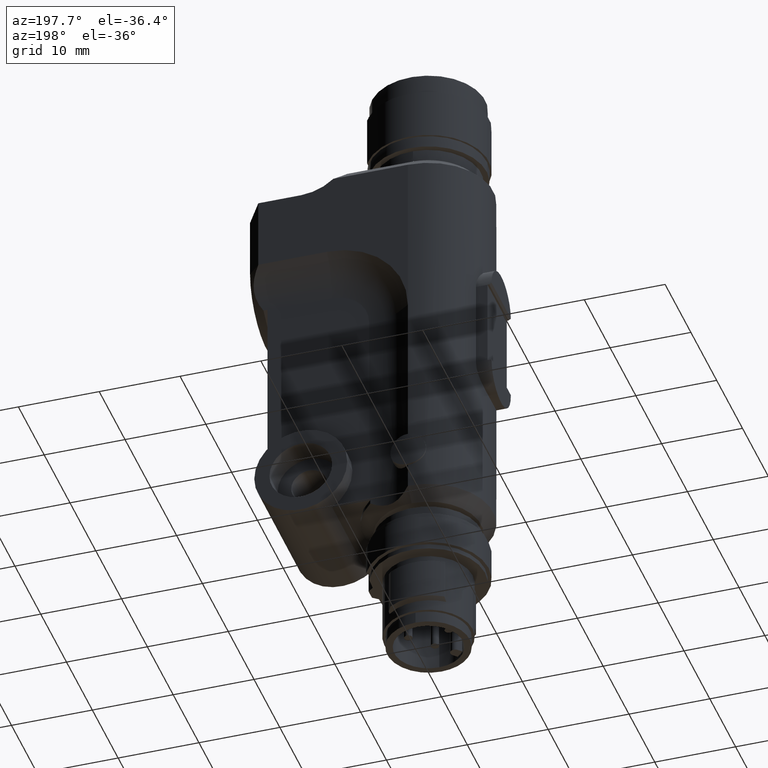
[diagram: clean part render]
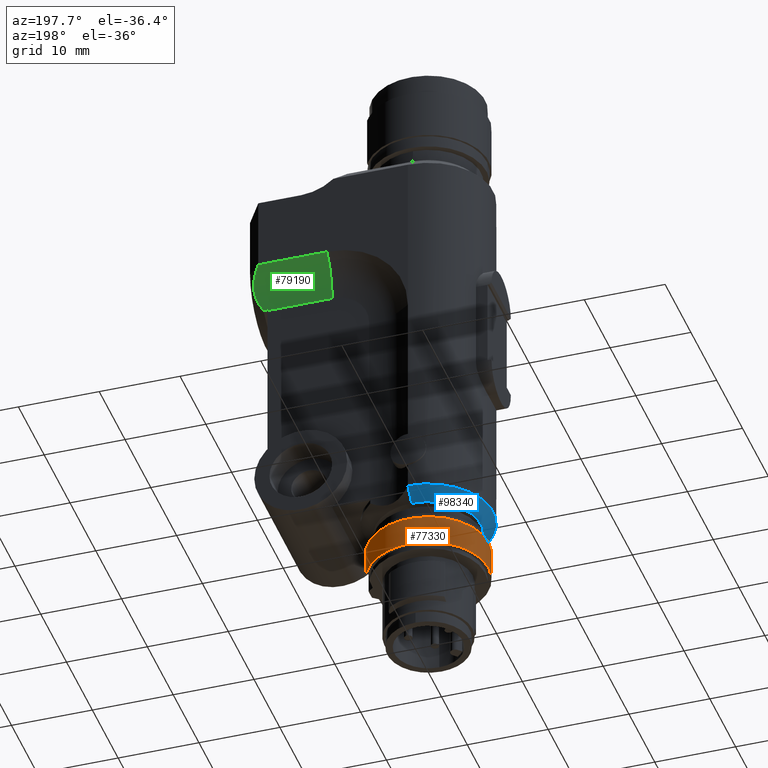
[diagram: same view with three faces highlighted in distinct colors, each labeled with its STEP entity id]
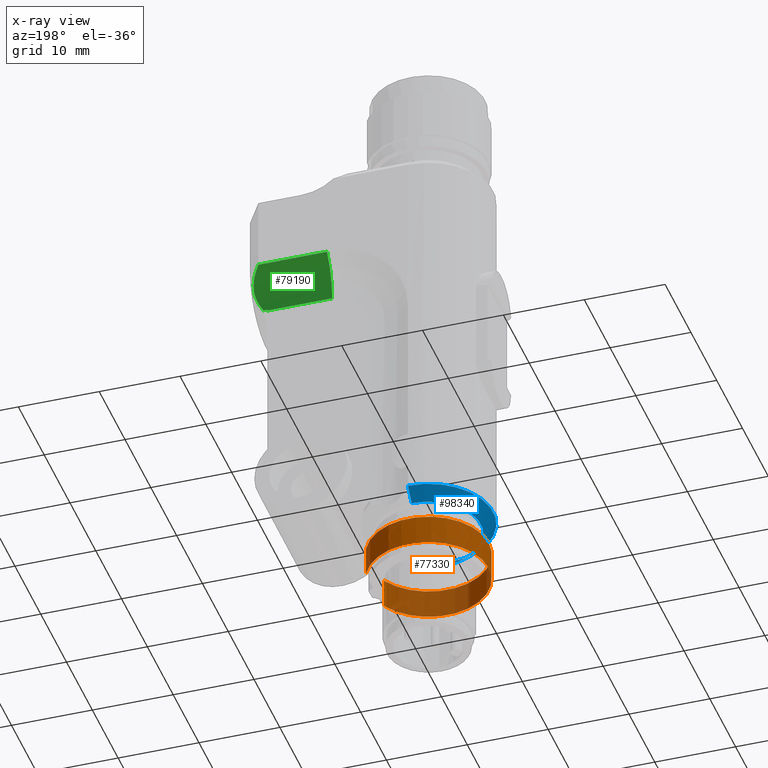
[diagram: x-ray of the same camera — body ghosted, the three highlighted faces saturated]
A machine part, auxiliary view with three faces highlighted in distinct colors.
The next image is the same camera in x-ray (body ghosted, the three faces saturated) — at least one of them is partly hidden behind the body in this view.
Their STEP definitions:

[orange] entity #77330 — the highlighted cylindrical surface (partial cylindrical patch) has radius 7.45 mm, axis along (0, -0, 1).
#76400=CARTESIAN_POINT('',(3.41126744068708,6.62312271123875,
-6.6000000000002));
#76410=VERTEX_POINT('',#76400);
#76440=CARTESIAN_POINT('',(3.41126744068708,6.62312271123875,
-6.6000000000002));
#76450=DIRECTION('',(1.22124532708767E-15,4.30211422042248E-16,1.));
#76460=VECTOR('',#76450,1.);
#76470=LINE('',#76440,#76460);
#76480=CARTESIAN_POINT('',(3.41126744068708,6.62312271123875,
-2.90000000000016));
#76490=VERTEX_POINT('',#76480);
#76500=EDGE_CURVE('',#76410,#76490,#76470,.T.);
#76880=CARTESIAN_POINT('',(-3.3433758552121,6.65765258111505,
-6.60000000000019));
#76890=VERTEX_POINT('',#76880);
#76920=CARTESIAN_POINT('',(-1.84030568561866E-12,2.32214247830598E-12,
-6.60000000000019));
#76930=DIRECTION('',(1.22124532708767E-15,4.30211422042248E-16,1.));
#76940=DIRECTION('',(-0.707106781186547,0.707106781186548,
5.55111512312578E-16));
#76950=AXIS2_PLACEMENT_3D('',#76920,#76930,#76940);
#76960=CIRCLE('',#76950,7.45);
#76970=EDGE_CURVE('',#76890,#76410,#76960,.T.);
#77090=CARTESIAN_POINT('',(-1.84030568561866E-12,2.32214247830598E-12,
-6.60000000000019));
#77100=DIRECTION('',(1.22124532708767E-15,3.95516952522712E-16,1.));
#77110=DIRECTION('',(-0.707106781186547,0.707106781186548,
5.55111512312578E-16));
#77120=AXIS2_PLACEMENT_3D('',#77090,#77100,#77110);
#77130=CYLINDRICAL_SURFACE('',#77120,7.45);
#77140=ORIENTED_EDGE('',*,*,#76500,.T.);
#77150=ORIENTED_EDGE('',*,*,#76970,.T.);
#77160=CARTESIAN_POINT('',(-3.34337585521209,6.65765258111506,
-6.60000000000019));
#77170=DIRECTION('',(1.22124532708767E-15,4.30211422042248E-16,1.));
#77180=VECTOR('',#77170,1.);
#77190=LINE('',#77160,#77180);
#77200=CARTESIAN_POINT('',(-3.3433758552121,6.65765258111505,
-2.90000000000015));
#77210=VERTEX_POINT('',#77200);
#77220=EDGE_CURVE('',#76890,#77210,#77190,.T.);
#77230=ORIENTED_EDGE('',*,*,#77220,.F.);
#77240=CARTESIAN_POINT('',(-1.83320025826106E-12,2.32303065672568E-12,
-2.90000000000015));
#77250=DIRECTION('',(1.22124532708767E-15,4.30211422042248E-16,1.));
#77260=DIRECTION('',(-0.707106781186547,0.707106781186548,
5.55111512312578E-16));
#77270=AXIS2_PLACEMENT_3D('',#77240,#77250,#77260);
#77280=CIRCLE('',#77270,7.45);
#77290=EDGE_CURVE('',#77210,#76490,#77280,.T.);
#77300=ORIENTED_EDGE('',*,*,#77290,.F.);
#77310=EDGE_LOOP('',(#77300,#77230,#77150,#77140));
#77320=FACE_OUTER_BOUND('',#77310,.T.);
#77330=ADVANCED_FACE('',(#77320),#77130,.T.);

[blue] entity #98340 — the highlighted conical surface has half-angle 45 deg.
#7100=CARTESIAN_POINT('',(8.,7.105427357601E-15,1.5));
#7110=VERTEX_POINT('',#7100);
#7140=CARTESIAN_POINT('',(7.61693287089118E-16,7.105427357601E-15,1.5));
#7150=DIRECTION('',(2.52970265222012E-16,6.19598451167187E-32,1.));
#7160=DIRECTION('',(1.,0.,-2.52970265222012E-16));
#7170=AXIS2_PLACEMENT_3D('',#7140,#7150,#7160);
#7180=CIRCLE('',#7170,8.);
#7190=CARTESIAN_POINT('',(-8.,8.08514479691888E-15,1.5));
#7200=VERTEX_POINT('',#7190);
#7210=EDGE_CURVE('',#7200,#7110,#7180,.T.);
#33750=CARTESIAN_POINT('',(3.822378892561E-16,7.105427357601E-15,
-5.0068352689673E-32));
#33760=DIRECTION('',(2.52970265222012E-16,6.19598451167187E-32,1.));
#33770=DIRECTION('',(1.,0.,-2.52970265222012E-16));
#33780=AXIS2_PLACEMENT_3D('',#33750,#33760,#33770);
#33790=CIRCLE('',#33780,6.5);
#33800=CARTESIAN_POINT('',(6.50000000000001,7.105427357601E-15,0.));
#33810=VERTEX_POINT('',#33800);
#33820=CARTESIAN_POINT('',(-6.50000000000001,7.90144777704678E-15,
1.55431223447522E-15));
#33830=VERTEX_POINT('',#33820);
#33860=EDGE_CURVE('',#33830,#33810,#33790,.T.);
#34130=CARTESIAN_POINT('',(-8.,8.08514479691888E-15,1.5));
#34140=DIRECTION('',(-0.707106781186547,8.65956056235493E-17,
0.707106781186548));
#34150=VECTOR('',#34140,11.3137084989848);
#34160=LINE('',#34130,#34150);
#34170=EDGE_CURVE('',#33830,#7200,#34160,.T.);
#34200=CARTESIAN_POINT('',(8.,7.105427357601E-15,1.5));
#34210=DIRECTION('',(0.707106781186547,0.,0.707106781186548));
#34220=VECTOR('',#34210,11.3137084989848);
#34230=LINE('',#34200,#34220);
#34240=EDGE_CURVE('',#33810,#7110,#34230,.T.);
#98230=CARTESIAN_POINT('',(7.61693287089118E-16,7.105427357601E-15,1.5))
;
#98240=DIRECTION('',(2.52970265222012E-16,0.,1.));
#98250=DIRECTION('',(1.,0.,-2.52970265222012E-16));
#98260=AXIS2_PLACEMENT_3D('',#98230,#98240,#98250);
#98270=CONICAL_SURFACE('',#98260,8.,0.785398163397448);
#98280=ORIENTED_EDGE('',*,*,#34170,.F.);
#98290=ORIENTED_EDGE('',*,*,#7210,.F.);
#98300=ORIENTED_EDGE('',*,*,#34240,.T.);
#98310=ORIENTED_EDGE('',*,*,#33860,.T.);
#98320=EDGE_LOOP('',(#98310,#98300,#98290,#98280));
#98330=FACE_OUTER_BOUND('',#98320,.T.);
#98340=ADVANCED_FACE('',(#98330),#98270,.T.);

[green] entity #79190 — the highlighted cylindrical surface (partial cylindrical patch) has radius 8 mm, axis along (1, 0, 0).
#11360=CARTESIAN_POINT('',(-6.,18.,32.7084973778706));
#11370=VERTEX_POINT('',#11360);
#11400=CARTESIAN_POINT('',(-14.0000000000001,18.,32.7084973778708));
#11410=DIRECTION('',(0.,-1.,0.));
#11420=DIRECTION('',(0.,0.,1.));
#11430=AXIS2_PLACEMENT_3D('',#11400,#11410,#11420);
#11440=CIRCLE('',#11430,8.00000000000009);
#11450=CARTESIAN_POINT('',(-6.001,18.,32.582010224373));
#11460=VERTEX_POINT('',#11450);
#11470=EDGE_CURVE('',#11460,#11370,#11440,.T.);
#16040=CARTESIAN_POINT('',(-7.99999859336713,18.5000014066328,
37.9999984050278));
#16050=VERTEX_POINT('',#16040);
#16080=CARTESIAN_POINT('',(2.79776202205539E-14,18.5,38.0000000000001));
#16090=DIRECTION('',(0.,-1.,0.));
#16100=DIRECTION('',(1.,0.,0.));
#16110=AXIS2_PLACEMENT_3D('',#16080,#16090,#16100);
#16120=CONICAL_SURFACE('',#16110,8.00000000000019,0.785398163397446);
#16130=CARTESIAN_POINT('',(-14.0000000000001,20.,32.7084973778708));
#16140=DIRECTION('',(0.,1.,0.));
#16150=DIRECTION('',(0.,0.,1.));
#16160=AXIS2_PLACEMENT_3D('',#16130,#16140,#16150);
#16170=CYLINDRICAL_SURFACE('',#16160,8.00000000000009);
#16180=CARTESIAN_POINT('',(-5.99999999999996,18.5,32.7084973778706));
#16190=CARTESIAN_POINT('',(-5.99999999999996,18.5714493408275,
32.8165186276814));
#16200=CARTESIAN_POINT('',(-6.0021889720516,18.6411769465298,
32.9262736845923));
#16210=CARTESIAN_POINT('',(-6.00677089526938,18.7085294848601,
33.0375695269314));
#16220=CARTESIAN_POINT('',(-6.01135282209607,18.7758820762399,
33.1488654569313));
#16230=CARTESIAN_POINT('',(-6.01832737454154,18.8408603146523,
33.2617032516133));
#16240=CARTESIAN_POINT('',(-6.02788860111193,18.902786847561,
33.3759101764586));
#16250=CARTESIAN_POINT('',(-6.03744982874106,18.964713387327,
33.4901171139504));
#16260=CARTESIAN_POINT('',(-6.04959752579692,19.0235889693471,
33.6056950091979));
#16270=CARTESIAN_POINT('',(-6.06452112521964,19.0787107837863,
33.7224870365531));
#16280=CARTESIAN_POINT('',(-6.07944471184251,19.1338325509479,
33.8392789637366));
#16290=CARTESIAN_POINT('',(-6.09714421990201,19.1852008294304,
33.9572872568992));
#16300=CARTESIAN_POINT('',(-6.11780816648881,19.2320899245847,
34.0763613695489));
#16310=CARTESIAN_POINT('',(-6.1281409748359,19.2555363670037,
34.1359032377947));
#16320=CARTESIAN_POINT('',(-6.13921093131087,19.2778551462465,
34.1956908060053));
#16330=CARTESIAN_POINT('',(-6.15105326643681,19.2989753041726,
34.2557643792923));
#16340=CARTESIAN_POINT('',(-6.16289862063636,19.3201008464517,
34.3158532676788));
#16350=CARTESIAN_POINT('',(-6.17552804090742,19.3400435548115,
34.3762803716618));
#16360=CARTESIAN_POINT('',(-6.18895412942939,19.358680109334,
34.4369540327632));
#16370=CARTESIAN_POINT('',(-6.20238021018781,19.37731665308,
34.4976276587805));
#16380=CARTESIAN_POINT('',(-6.21660279624114,19.3946465154964,
34.5585468605852));
#16390=CARTESIAN_POINT('',(-6.23162651443677,19.4105594882244,
34.6196157386214));
#16400=CARTESIAN_POINT('',(-6.24665025098471,19.4264724803909,
34.6806846912567));
#16410=CARTESIAN_POINT('',(-6.26247483240855,19.4409680610936,
34.7419020213869));
#16420=CARTESIAN_POINT('',(-6.27909700041064,19.4539531733856,
34.8031708299733));
#16430=CARTESIAN_POINT('',(-6.2957187606876,19.4669379671659,
34.8644381356973));
#16440=CARTESIAN_POINT('',(-6.31313328415602,19.4784117321749,
34.9257435902121));
#16450=CARTESIAN_POINT('',(-6.33137272206272,19.4883182711279,
34.9871275962425));
#16460=CARTESIAN_POINT('',(-6.34960871853724,19.4982229409069,
35.0485000202881));
#16470=CARTESIAN_POINT('',(-6.3686536812867,19.5065485453529,
35.1098931906529));
#16480=CARTESIAN_POINT('',(-6.38848092045468,19.5132308123999,
35.1711742348128));
#16490=CARTESIAN_POINT('',(-6.40830965437956,19.5199135832167,
35.2324598988929));
#16500=CARTESIAN_POINT('',(-6.42894084247873,19.5249591129044,
35.2936949569237));
#16510=CARTESIAN_POINT('',(-6.45033510840105,19.5283242004416,
35.3547324438765));
#16520=CARTESIAN_POINT('',(-6.47172618693533,19.5316887866369,
35.4157608372639));
#16530=CARTESIAN_POINT('',(-6.49389289285028,19.5333757540502,
35.4766286354332));
#16540=CARTESIAN_POINT('',(-6.5167932497905,19.5333704403711,
35.5372102890053));
#16550=CARTESIAN_POINT('',(-6.53968990516133,19.533365127551,
35.5977821502761));
#16560=CARTESIAN_POINT('',(-6.56333005615067,19.5316679450744,
35.6580944552051));
#16570=CARTESIAN_POINT('',(-6.5876599072674,19.5282925390286,
35.718017995788));
#16580=CARTESIAN_POINT('',(-6.61198656408435,19.5249175761447,
35.7779336689264));
#16590=CARTESIAN_POINT('',(-6.63701810516557,19.519862685734,
35.8374984566278));
#16600=CARTESIAN_POINT('',(-6.66269078185908,19.5131688714316,
35.8965835494453));
#16610=CARTESIAN_POINT('',(-6.68835935929203,19.5064761259578,
35.955659207906));
#16620=CARTESIAN_POINT('',(-6.71467834178696,19.4981436089631,
36.0142785027242));
#16630=CARTESIAN_POINT('',(-6.74160419211325,19.4882273913278,
36.0723776218828));
#16640=CARTESIAN_POINT('',(-6.76852811078675,19.4783118850791,
36.1304725730271));
#16650=CARTESIAN_POINT('',(-6.79604985881537,19.4668155726103,
36.1880271198175));
#16660=CARTESIAN_POINT('',(-6.82409459348144,19.4538290633079,
36.2449336627058));
#16670=CARTESIAN_POINT('',(-6.85213869061053,19.4408428492261,
36.3018389119457));
#16680=CARTESIAN_POINT('',(-6.88074807107649,19.4263475540022,
36.3581828354169));
#16690=CARTESIAN_POINT('',(-6.90986541632887,19.4104329778546,
36.413897705154));
#16700=CARTESIAN_POINT('',(-6.9389827030333,19.3945184337074,
36.469612462862));
#16710=CARTESIAN_POINT('',(-6.96860734920602,19.3771850825536,
36.5246970465447));
#16720=CARTESIAN_POINT('',(-6.99867660327346,19.3585389798986,
36.5790878618215));
#16730=CARTESIAN_POINT('',(-7.02874585276423,19.3398928800816,
36.6334786688197));
#16740=CARTESIAN_POINT('',(-7.05925921748089,19.3199345115386,
36.6871748991247));
#16750=CARTESIAN_POINT('',(-7.09015044800666,19.2987826340558,
36.7401197769622));
#16760=CARTESIAN_POINT('',(-7.121047716537,19.2776266222239,
36.7930750034136));
#16770=CARTESIAN_POINT('',(-7.15229576829609,19.2552969333562,
36.8452342574757));
#16780=CARTESIAN_POINT('',(-7.18390392356054,19.23186399518,
36.8966752963415));
#16790=CARTESIAN_POINT('',(-7.24713125116519,19.1849899512374,
36.9995753039337));
#16800=CARTESIAN_POINT('',(-7.3118576134856,19.1336567069888,
37.0996917480109));
#16810=CARTESIAN_POINT('',(-7.37785576648486,19.0785805719868,
37.1970612629595));
#16820=CARTESIAN_POINT('',(-7.44385406833094,19.0235043127706,
37.2944309975072));
#16830=CARTESIAN_POINT('',(-7.51112619224866,18.9646842797685,
37.3890562824095));
#16840=CARTESIAN_POINT('',(-7.57944441047193,18.9028049342525,
37.4809669609881));
#16850=CARTESIAN_POINT('',(-7.64776265388963,18.8409255659167,
37.5728776734616));
#16860=CARTESIAN_POINT('',(-7.71712873863645,18.7759856575714,
37.6620754502897));
#16870=CARTESIAN_POINT('',(-7.78730349440589,18.7086388055578,
37.7485769535699));
#16880=CARTESIAN_POINT('',(-7.85747819030448,18.6412920110023,
37.8350783830497));
#16890=CARTESIAN_POINT('',(-7.92846275542024,18.5715372284055,
37.9188843456791));
#16900=CARTESIAN_POINT('',(-7.99999859301403,18.5000014069876,
37.9999984046279));
#16910=B_SPLINE_CURVE_WITH_KNOTS('',3,(#16180,#16190,#16200,#16210,
#16220,#16230,#16240,#16250,#16260,#16270,#16280,#16290,#16300,#16310,
#16320,#16330,#16340,#16350,#16360,#16370,#16380,#16390,#16400,#16410,
#16420,#16430,#16440,#16450,#16460,#16470,#16480,#16490,#16500,#16510,
#16520,#16530,#16540,#16550,#16560,#16570,#16580,#16590,#16600,#16610,
#16620,#16630,#16640,#16650,#16660,#16670,#16680,#16690,#16700,#16710,
#16720,#16730,#16740,#16750,#16760,#16770,#16780,#16790,#16800,#16810,
#16820,#16830,#16840,#16850,#16860,#16870,#16880,#16890,#16900),
.UNSPECIFIED.,.F.,.F.,(4,3,3,3,3,3,3,3,3,3,3,3,3,3,3,3,3,3,3,3,3,3,3,3,4
),(0.,0.389685716820624,0.780458460909038,1.17092994858571,
1.56037966745842,1.7547255098787,1.94924441131206,2.14388587282413,
2.33840400629358,2.53273073554968,2.7270625195362,2.92137543959998,
3.11567081107734,3.30996356038954,3.50426784593773,3.6985939968194,
3.8929456776934,4.08736032633098,4.281977368909,4.47659583619128,
4.67097543067238,5.06010772295076,5.45023407287883,5.84083357983416,
6.23072803032288),.UNSPECIFIED.);
#16920=SURFACE_CURVE('',#16910,(#16120,#16170),.CURVE_3D.);
#16930=CARTESIAN_POINT('',(-6.,18.5000000000108,32.7084973778706));
#16940=VERTEX_POINT('',#16930);
#16950=EDGE_CURVE('',#16940,#16050,#16920,.T.);
#18380=CARTESIAN_POINT('',(-6.,18.,32.7084973778707));
#18390=DIRECTION('',(0.,1.,0.));
#18400=VECTOR('',#18390,1.);
#18410=LINE('',#18380,#18400);
#18420=EDGE_CURVE('',#11370,#16940,#18410,.T.);
#19690=CARTESIAN_POINT('',(-7.99999999999999,20.,38.));
#19700=DIRECTION('',(0.,1.,0.));
#19710=VECTOR('',#19700,1.);
#19720=LINE('',#19690,#19710);
#19730=CARTESIAN_POINT('',(-7.99999999999999,10.,38.));
#19740=VERTEX_POINT('',#19730);
#19750=CARTESIAN_POINT('',(-7.99999999999999,18.5,38.));
#19760=VERTEX_POINT('',#19750);
#19770=EDGE_CURVE('',#19740,#19760,#19720,.T.);
#24430=CARTESIAN_POINT('',(-14.0000000000001,12.4999999999996,
32.7084973778708));
#24440=DIRECTION('',(0.707106781186564,-0.707106781186531,0.));
#24450=DIRECTION('',(-0.707106781186531,-0.707106781186564,0.));
#24460=AXIS2_PLACEMENT_3D('',#24430,#24440,#24450);
#24470=ELLIPSE('',#24460,11.3137084989852,8.00000000000009);
#24480=EDGE_CURVE('',#16050,#19760,#24470,.T.);
#24640=CARTESIAN_POINT('',(-6.001,9.99979126227064,32.5820102196179));
#24650=VERTEX_POINT('',#24640);
#24740=CARTESIAN_POINT('',(-6.001,20.,32.582010224373));
#24750=DIRECTION('',(0.,1.,0.));
#24760=VECTOR('',#24750,1.);
#24770=LINE('',#24740,#24760);
#24780=EDGE_CURVE('',#24650,#11460,#24770,.T.);
#28610=CARTESIAN_POINT('',(-6.00099999996241,9.9997912622702,
32.5820102243724));
#28620=CARTESIAN_POINT('',(-5.99905382179248,9.99982992538619,
32.7050857996448));
#28630=CARTESIAN_POINT('',(-5.99994867757186,9.99987284943423,
32.8282062892243));
#28640=CARTESIAN_POINT('',(-6.00741855101626,9.99994155915745,
33.0742748596516));
#28650=CARTESIAN_POINT('',(-6.01399356802559,9.99998014137582,
33.1972229188203));
#28660=CARTESIAN_POINT('',(-6.03280975903188,10.000014495122,
33.4426847178797));
#28670=CARTESIAN_POINT('',(-6.0450509315676,10.0000034712061,
33.5651984371372));
#28680=CARTESIAN_POINT('',(-6.0751733568211,10.0000033957913,
33.8095305571864));
#28690=CARTESIAN_POINT('',(-6.09305460736925,9.99998821965409,
33.931348940518));
#28700=CARTESIAN_POINT('',(-6.13441909698242,10.0000059645154,
34.1740308793612));
#28710=CARTESIAN_POINT('',(-6.15790233300401,10.0000054802593,
34.2948944174781));
#28720=CARTESIAN_POINT('',(-6.21042076869601,10.0000075845503,
34.5354091943637));
#28730=CARTESIAN_POINT('',(-6.23945596441887,10.0000029102912,
34.6550604150764));
#28740=CARTESIAN_POINT('',(-6.30301646715335,10.0000038951417,
34.8928956659851));
#28750=CARTESIAN_POINT('',(-6.33754176935453,10.0000002985715,
35.0110796781686));
#28760=CARTESIAN_POINT('',(-6.41200893710365,10.0000001618834,
35.2457287460018));
#28770=CARTESIAN_POINT('',(-6.45195079703032,9.99999854366632,
35.3621937839335));
#28780=CARTESIAN_POINT('',(-6.53716599385156,10.000007441929,
35.5931568002295));
#28790=CARTESIAN_POINT('',(-6.58243932444605,10.0000061607539,
35.7076547613401));
#28800=CARTESIAN_POINT('',(-6.6782210180146,10.0000060464087,
35.9344397092382));
#28810=CARTESIAN_POINT('',(-6.72872937375276,10.0000025770729,
36.0467266788972));
#28820=CARTESIAN_POINT('',(-6.834873521229,10.0000027226943,
36.2688504403606));
#28830=CARTESIAN_POINT('',(-6.89050930493124,10.0000032036122,
36.3786872153445));
#28840=CARTESIAN_POINT('',(-7.00678978897772,10.0000036088901,
36.595676603327));
#28850=CARTESIAN_POINT('',(-7.06743448052477,10.0000039906968,
36.702829199909));
#28860=CARTESIAN_POINT('',(-7.19360359052133,10.0000037398743,
36.9142219650741));
#28870=CARTESIAN_POINT('',(-7.2591279994261,10.0000031322804,
37.0184621176629));
#28880=CARTESIAN_POINT('',(-7.3949169591605,10.0000022509402,
37.2238079330803));
#28890=CARTESIAN_POINT('',(-7.46518149971624,10.0000015447691,
37.3249135803728));
#28900=CARTESIAN_POINT('',(-7.61030103993298,10.0000008996389,
37.5237750008218));
#28910=CARTESIAN_POINT('',(-7.68515602861442,10.0000007259439,
37.6215307589328));
#28920=CARTESIAN_POINT('',(-7.83929700327201,10.0000003183979,
37.8134841528273));
#28930=CARTESIAN_POINT('',(-7.91858297758679,10.0000001741188,
37.9076817740888));
#28940=CARTESIAN_POINT('',(-8.,10.,38.));
#28950=B_SPLINE_CURVE_WITH_KNOTS('',3,(#28610,#28620,#28630,#28640,
#28650,#28660,#28670,#28680,#28690,#28700,#28710,#28720,#28730,#28740,
#28750,#28760,#28770,#28780,#28790,#28800,#28810,#28820,#28830,#28840,
#28850,#28860,#28870,#28880,#28890,#28900,#28910,#28920,#28930,#28940),
.UNSPECIFIED.,.F.,.F.,(4,2,2,2,2,2,2,2,2,2,2,2,2,2,2,2,4),(0.,
0.360937441842676,0.721874883685351,1.08281232552803,1.4437497673707,
1.80468720921338,2.16562465105605,2.52656209289873,2.88749953474141,
3.24843697658408,3.60937441842676,3.97031186026943,4.33124930211211,
4.69218674395479,5.05312418579746,5.41406162764014,5.77499906948281),
.UNSPECIFIED.);
#28960=EDGE_CURVE('',#24650,#19740,#28950,.T.);
#79100=ORIENTED_EDGE('',*,*,#24780,.F.);
#79110=ORIENTED_EDGE('',*,*,#11470,.F.);
#79120=ORIENTED_EDGE('',*,*,#18420,.F.);
#79130=ORIENTED_EDGE('',*,*,#16950,.F.);
#79140=ORIENTED_EDGE('',*,*,#24480,.F.);
#79150=ORIENTED_EDGE('',*,*,#19770,.T.);
#79160=ORIENTED_EDGE('',*,*,#28960,.T.);
#79170=EDGE_LOOP('',(#79160,#79150,#79140,#79130,#79120,#79110,#79100));
#79180=FACE_OUTER_BOUND('',#79170,.T.);
#79190=ADVANCED_FACE('',(#79180),#16170,.F.);